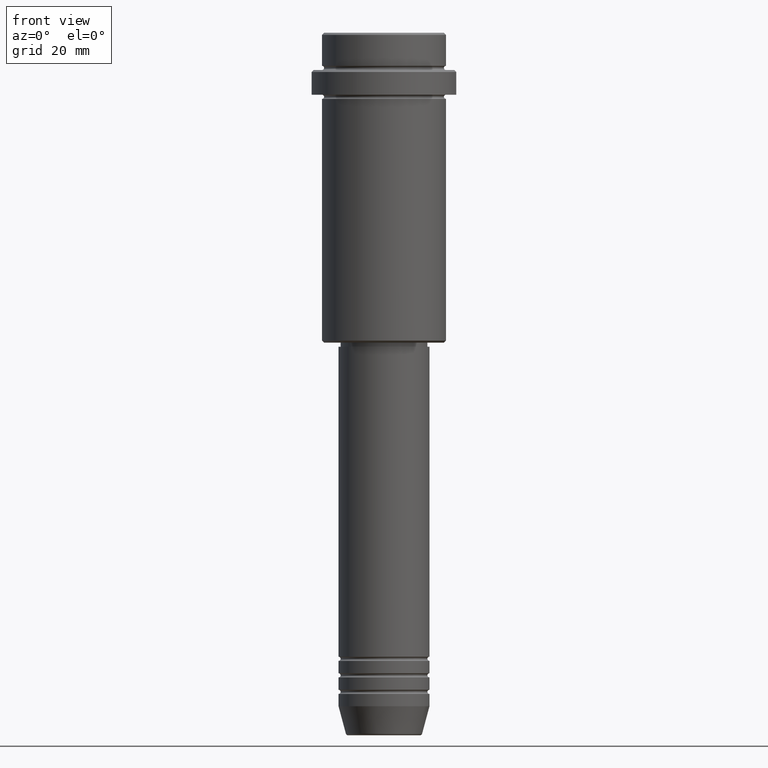
[diagram: clean part render]
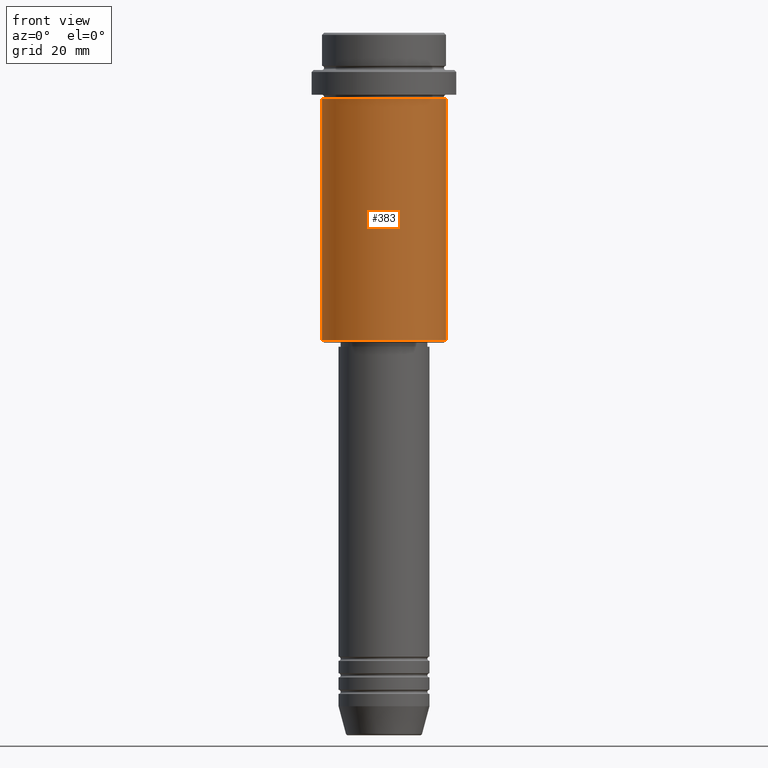
[diagram: same view with one face highlighted and labeled with its STEP entity id]
A machine part, front view. The second image highlights one B-rep face of the part: STEP entity #383.
In plain terms, the highlighted cylindrical surface (partial cylindrical patch) has radius 15 mm, axis along (-0, -0, 1).
Its self-contained STEP definition (entity closure, byte-faithful):
#6 = CARTESIAN_POINT ( 'NONE',  ( 15.00000000000000178, 0.000000000000000000, -16.00000000000000000 ) ) ;
#9 = DIRECTION ( 'NONE',  ( 1.000000000000000000, 0.000000000000000000, 0.000000000000000000 ) ) ;
#17 = AXIS2_PLACEMENT_3D ( 'NONE', #977, #1222, #361 ) ;
#42 = VECTOR ( 'NONE', #1277, 1000.000000000000000 ) ;
#54 = EDGE_CURVE ( 'NONE', #1298, #1317, #1071, .T. ) ;
#120 = EDGE_CURVE ( 'NONE', #1317, #789, #1148, .T. ) ;
#326 = VERTEX_POINT ( 'NONE', #1308 ) ;
#340 = ORIENTED_EDGE ( 'NONE', *, *, #905, .F. ) ;
#343 = AXIS2_PLACEMENT_3D ( 'NONE', #501, #946, #1264 ) ;
#361 = DIRECTION ( 'NONE',  ( 1.000000000000000000, 0.000000000000000000, 0.000000000000000000 ) ) ;
#383 = ADVANCED_FACE ( 'NONE', ( #901 ), #485, .T. ) ;
#391 = DIRECTION ( 'NONE',  ( -0.000000000000000000, -0.000000000000000000, 1.000000000000000000 ) ) ;
#395 = VECTOR ( 'NONE', #391, 1000.000000000000000 ) ;
#472 = CARTESIAN_POINT ( 'NONE',  ( 0.000000000000000000, 0.000000000000000000, 0.000000000000000000 ) ) ;
#482 = CARTESIAN_POINT ( 'NONE',  ( 15.00000000000000000, 0.000000000000000000, -74.50000000000001421 ) ) ;
#485 = CYLINDRICAL_SURFACE ( 'NONE', #530, 15.00000000000000000 ) ;
#488 = CARTESIAN_POINT ( 'NONE',  ( -15.00000000000000000, 1.836970198721029589E-15, -74.50000000000001421 ) ) ;
#501 = CARTESIAN_POINT ( 'NONE',  ( 0.000000000000000000, 0.000000000000000000, -74.50000000000001421 ) ) ;
#526 = CARTESIAN_POINT ( 'NONE',  ( 15.00000000000000000, 0.000000000000000000, 0.000000000000000000 ) ) ;
#530 = AXIS2_PLACEMENT_3D ( 'NONE', #472, #792, #9 ) ;
#554 = EDGE_LOOP ( 'NONE', ( #340, #1011, #902, #1358 ) ) ;
#789 = VERTEX_POINT ( 'NONE', #6 ) ;
#792 = DIRECTION ( 'NONE',  ( -0.000000000000000000, -0.000000000000000000, 1.000000000000000000 ) ) ;
#861 = EDGE_CURVE ( 'NONE', #326, #789, #1233, .T. ) ;
#901 = FACE_OUTER_BOUND ( 'NONE', #554, .T. ) ;
#902 = ORIENTED_EDGE ( 'NONE', *, *, #120, .T. ) ;
#905 = EDGE_CURVE ( 'NONE', #1298, #326, #1265, .T. ) ;
#946 = DIRECTION ( 'NONE',  ( -0.000000000000000000, -0.000000000000000000, 1.000000000000000000 ) ) ;
#977 = CARTESIAN_POINT ( 'NONE',  ( 0.000000000000000000, 0.000000000000000000, -16.00000000000000000 ) ) ;
#1011 = ORIENTED_EDGE ( 'NONE', *, *, #54, .T. ) ;
#1032 = CARTESIAN_POINT ( 'NONE',  ( -15.00000000000000000, 1.836970198721029589E-15, 0.000000000000000000 ) ) ;
#1071 = CIRCLE ( 'NONE', #343, 15.00000000000000000 ) ;
#1148 = LINE ( 'NONE', #526, #42 ) ;
#1222 = DIRECTION ( 'NONE',  ( -0.000000000000000000, -0.000000000000000000, 1.000000000000000000 ) ) ;
#1233 = CIRCLE ( 'NONE', #17, 15.00000000000000178 ) ;
#1264 = DIRECTION ( 'NONE',  ( -1.000000000000000000, 0.000000000000000000, 0.000000000000000000 ) ) ;
#1265 = LINE ( 'NONE', #1032, #395 ) ;
#1277 = DIRECTION ( 'NONE',  ( -0.000000000000000000, -0.000000000000000000, 1.000000000000000000 ) ) ;
#1298 = VERTEX_POINT ( 'NONE', #488 ) ;
#1308 = CARTESIAN_POINT ( 'NONE',  ( -15.00000000000000355, 1.836970198721029983E-15, -16.00000000000000000 ) ) ;
#1317 = VERTEX_POINT ( 'NONE', #482 ) ;
#1358 = ORIENTED_EDGE ( 'NONE', *, *, #861, .F. ) ;